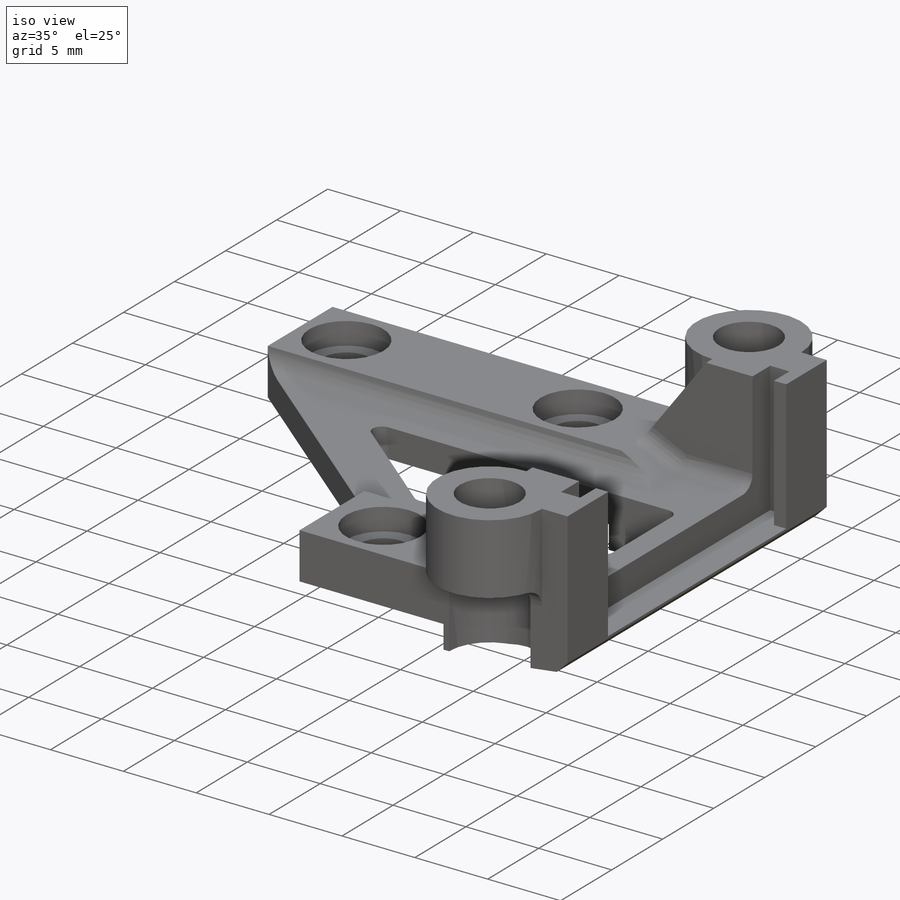
[diagram: iso view]
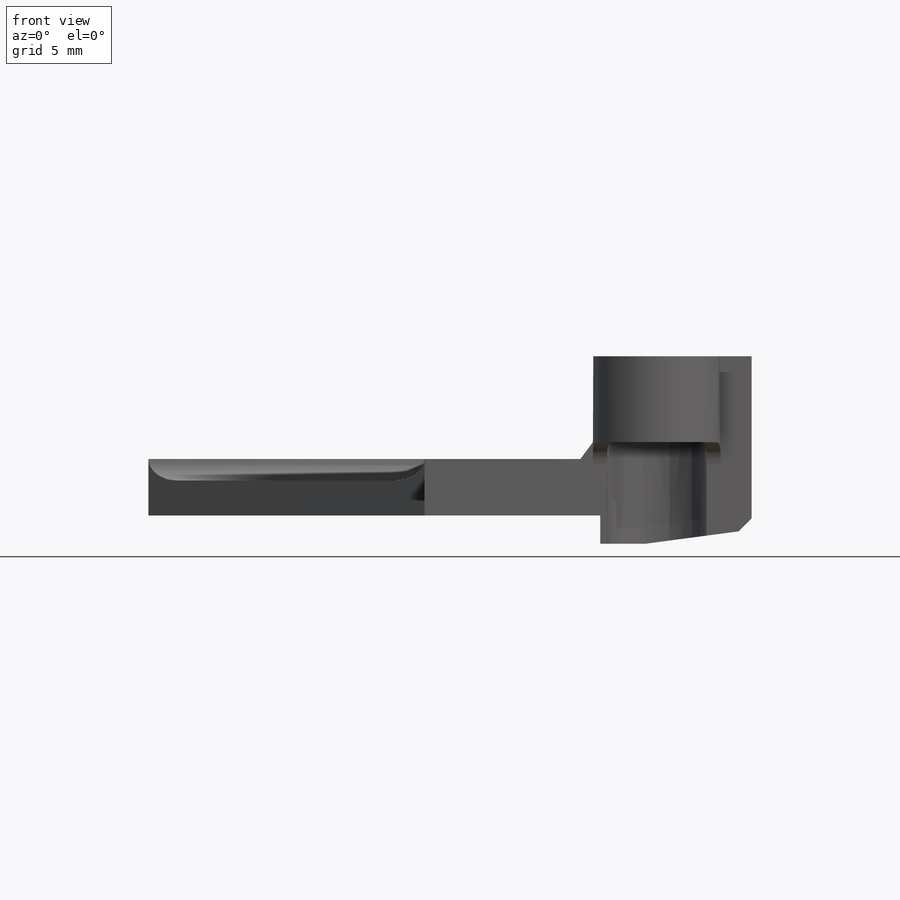
[diagram: front view]
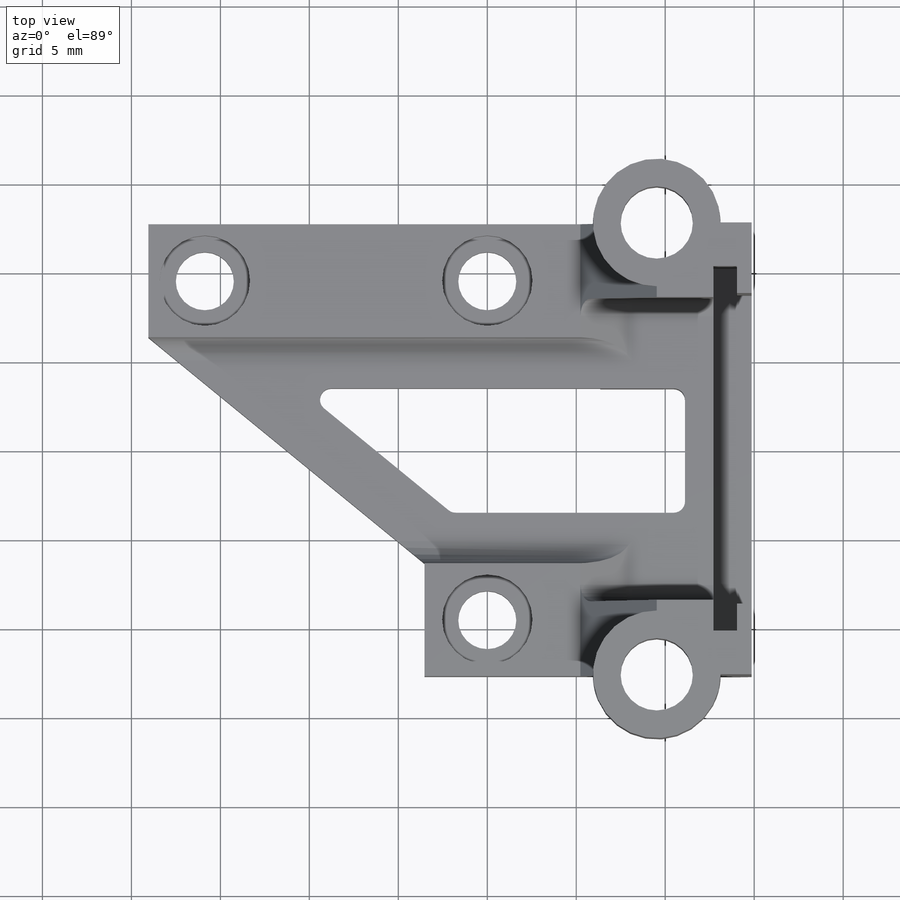
[diagram: top view]
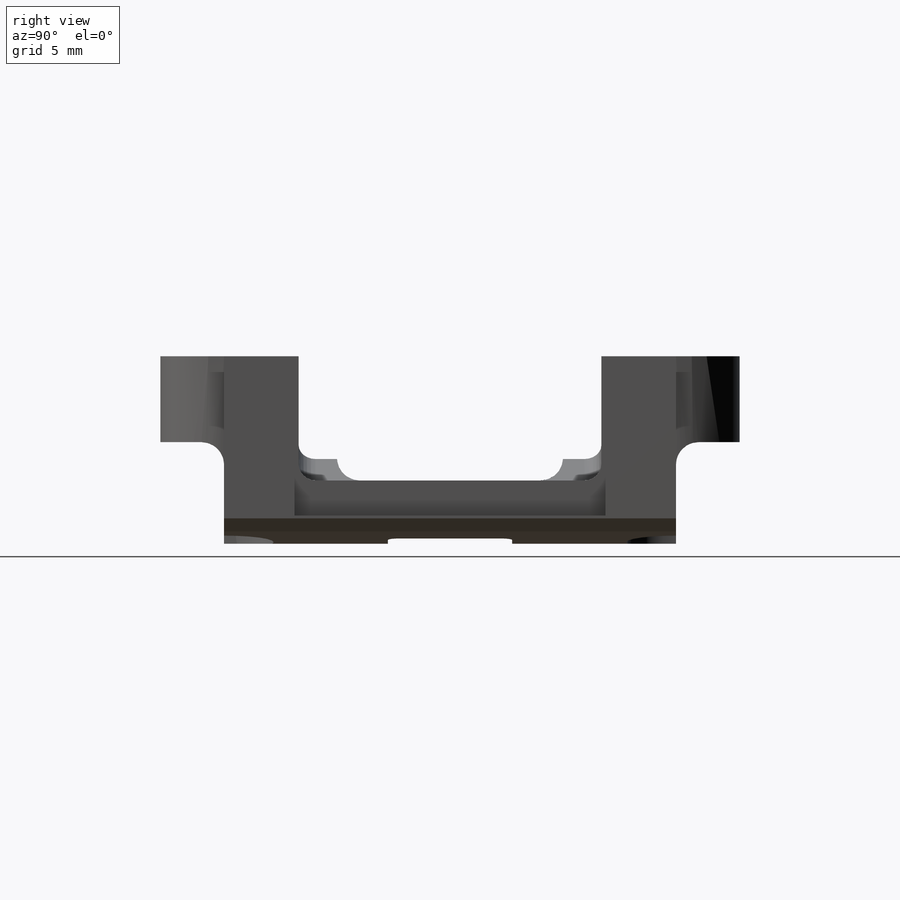
[diagram: right view]
SOLIDWORKS PART (.sldprt)
format: sldprt  version: not decoded by parser v0  size: 515,584 bytes
history: native  units: mm
features: sketch x17, extrude x7, cut_extrude x7, fillet x4, mirror x2, material x1, chamfer x1, hole x1 (+12 scaffold rows collapsed)
feature tree (52):
  scaffold x12  (default folders/planes/origin — collapsed)
  material  "Material <not specified>"
  sketch  "Sketch1"  dims[D1=26.9875mm D2=12.7mm D3=20.4978mm D4=1.3208mm D5=17.4625mm D6=9.1694mm D7=12.7mm]
  sketch  "Sketch3"  dims[D1=25.4mm D2=25.4mm D3=6.35mm D4=3.175mm]
  extrude  "Boss-Extrude1"  Depth=8.95096mm
  mirror  "Mirror1"
  sketch  "Sketch7"  dims[D1=3.175mm D2=8.763mm]
  cut_extrude  "Cut-Extrude1"  [1 undecoded]
  sketch  "Sketch10"  dims[D1=2.159mm D2=1.5875mm D3=~0.79375mm D4=2.54mm D5=1.5875mm]
  extrude  "Boss-Extrude3"  [1 undecoded]
  sketch  "Sketch12"  dims[D1=17.018mm D2=6.985mm]
  cut_extrude  "Cut-Extrude3"  Depth=4.7625mm
  sketch  "Sketch13"
  cut_extrude  "Cut-Extrude4"  [1 undecoded]
  chamfer  "Chamfer1"  Distance=0.635mm Angle=45deg
  sketch  "Sketch16"  dims[D1=25.4mm]
  extrude  "Boss-Extrude6"  [1 undecoded]
  sketch  "Sketch17"  dims[D1=0.0mm]
  extrude  "Boss-Extrude7"  [1 undecoded]
  sketch  "Sketch18"
  extrude  "Boss-Extrude8"  [1 undecoded]
  fillet  "Fillet1"  Radius=1.27mm
  hole  "CBORE for #4 Binding Head Machine Screw1"  Diameter=3.2639mm Depth=4.762525mm
  sketch  "Sketch20"
  sketch  "Sketch19"  dims[hole-wizard template sketch: 42 standard entries collapsed; hole parameters kept: c12.Thru Hole Depth=~4.762525mm c12.C'Bore Dia.=5.08mm c12.C'Bore Depth=1.524mm]
  sketch  "Sketch21"  dims[D5=0.635mm D1=3.175mm D2=1.5875mm D3=1.5875mm D4=1.5875mm]
  cut_extrude  "Cut-Extrude5"  [1 undecoded]
  sketch  "Sketch25"  dims[D1=8.2042mm D2=9.4488mm D3=10.3251mm D4=12.0523mm D5=0.254mm]
  cut_extrude  "Cut-Extrude8"  [1 undecoded]
  fillet  "Fillet3"  Radius=0.9525mm
  fillet  "Fillet4"  Radius=0.9525mm
  sketch  "Sketch26"  dims[D1=5.588mm D2=~0.79375mm]
  extrude  "Boss-Extrude11"  [1 undecoded]
  extrude  "Boss-Extrude12"  [1 undecoded]
  sketch  "Sketch26<2>"
  sketch  "Sketch27"  dims[D1=5.588mm]
  cut_extrude  "Cut-Extrude9"  Depth=0.508mm
  sketch  "Sketch28"  dims[D1=4.064mm]
  cut_extrude  "Cut-Extrude10"  [1 undecoded]
  mirror  "Mirror6"
  fillet  "Fillet5"  Radius=1.27mm
decode coverage: 22 of 39 modeling features carry decoded parameters
note: ~ marks probable driven/reference dimensions
note: 11 parameter values undecoded
summary: no parameter record found for 11 features
note: suppression state not decoded; provenance and decode notes live in map.json
